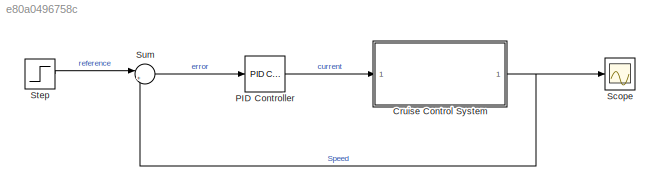
MODEL slx_e80a0496758c
KIND model
CONFIG AbsTol = auto
CONFIG EnableMultiTasking = off
CONFIG FixedStep = auto
CONFIG MaxStep = auto
CONFIG MinStep = auto
CONFIG RelTol = 1e-3
CONFIG SampleTimeConstraint = Unconstrained
CONFIG SolverName = VariableStepAuto
CONFIG StartTime = 0.0
CONFIG StopTime = 10.0
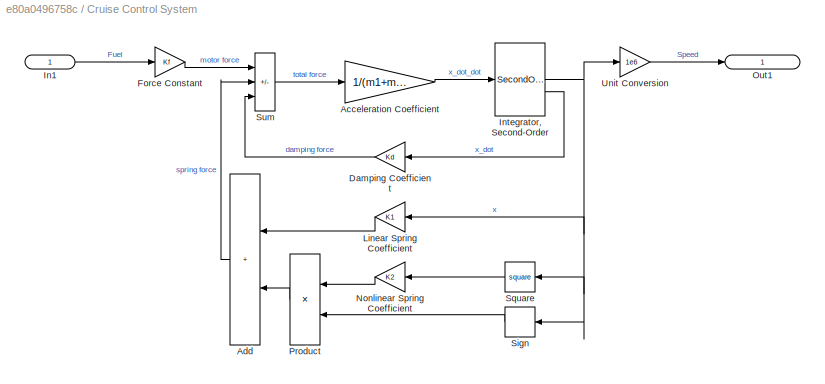
BLOCK [SubSystem] Cruise Control System
BLOCK [Gain] Cruise Control System/Acceleration Coefficient
  Gain = 1/(m1+m2)
BLOCK [Sum] Cruise Control System/Add
  IconShape = rectangular
BLOCK [Gain] Cruise Control System/Damping Coefficient
  Gain = Kd
BLOCK [Gain] Cruise Control System/Force Constant
  Gain = Kf
BLOCK [Inport] Cruise Control System/In1
  IconDisplay = Signal name
BLOCK [SecondOrderIntegrator] Cruise Control System/Integrator, Second-Order
  ICX = 0
  IgnoreStateLimitsAndResetForLinearization = on
  LimitX = on
  LowerLimitX = 0
  UpperLimitX = 1e-3
BLOCK [Gain] Cruise Control System/Linear Spring Coefficient
  Gain = K1
BLOCK [Gain] Cruise Control System/Nonlinear Spring Coefficient
  Gain = K2
BLOCK [Outport] Cruise Control System/Out1
  IconDisplay = Signal name
BLOCK [Product] Cruise Control System/Product
BLOCK [Signum] Cruise Control System/Sign
BLOCK [Math] Cruise Control System/Square
  Operator = square
BLOCK [Sum] Cruise Control System/Sum
  IconShape = rectangular
  Inputs = +--
BLOCK [Gain] Cruise Control System/Unit Conversion
  Gain = 1e6
BLOCK [Reference] PID Controller  REF=slpidlib/PID Controller
  LibrarySourceBlock = simulink/Continuous/PID Controller
  SourceBlock = slpidlib/PID Controller
  SourceType = PID 1dof
BLOCK [Scope] Scope
  Floating = off
  NumInputPorts = 1
  ScopeSpecificationString = Simulink.scopes.TimeScopeBlockCfg('CurrentConfiguration', extmgr.ConfigurationSet(extmgr.Configuration('Core','General UI',true),extmgr.Configuration('Core','Source UI',true),extmgr.Configuration('Sources','WiredSimulink',true),extmgr.Configuration('Visuals','Time Domain',true,'SerializedDisplays',{struct('MinYLimReal','-2.0011','MaxYLimReal','18.00987','YLabelReal','','MinYLimMag','0.00000','MaxY...<+1357ch>
BLOCK [Step] Step
  After = 15
  SampleTime = 0
BLOCK [Sum] Sum
  Inputs = |+-
LINE Cruise Control System/Acceleration Coefficient:1 -> Cruise Control System/Integrator, Second-Order:1
LINE Cruise Control System/Add:1 -> Cruise Control System/Sum:2
LINE Cruise Control System/Damping Coefficient:1 -> Cruise Control System/Sum:3
LINE Cruise Control System/Force Constant:1 -> Cruise Control System/Sum:1
LINE Cruise Control System/In1:1 -> Cruise Control System/Force Constant:1
NET Cruise Control System/Integrator, Second-Order:1 -> Cruise Control System/Linear Spring Coefficient:1, Cruise Control System/Sign:1, Cruise Control System/Square:1, Cruise Control System/Unit Conversion:1
LINE Cruise Control System/Integrator, Second-Order:2 -> Cruise Control System/Damping Coefficient:1
LINE Cruise Control System/Linear Spring Coefficient:1 -> Cruise Control System/Add:1
LINE Cruise Control System/Nonlinear Spring Coefficient:1 -> Cruise Control System/Product:1
LINE Cruise Control System/Product:1 -> Cruise Control System/Add:2
LINE Cruise Control System/Sign:1 -> Cruise Control System/Product:2
LINE Cruise Control System/Square:1 -> Cruise Control System/Nonlinear Spring Coefficient:1
LINE Cruise Control System/Sum:1 -> Cruise Control System/Acceleration Coefficient:1
LINE Cruise Control System/Unit Conversion:1 -> Cruise Control System/Out1:1
NET Cruise Control System:1 -> Scope:1, Sum:2
LINE PID Controller:1 -> Cruise Control System:1
LINE Step:1 -> Sum:1
LINE Sum:1 -> PID Controller:1
note: NET lines group one-source signal fan-out (src -> all destinations, sorted); 1:1 wires keep LINE
